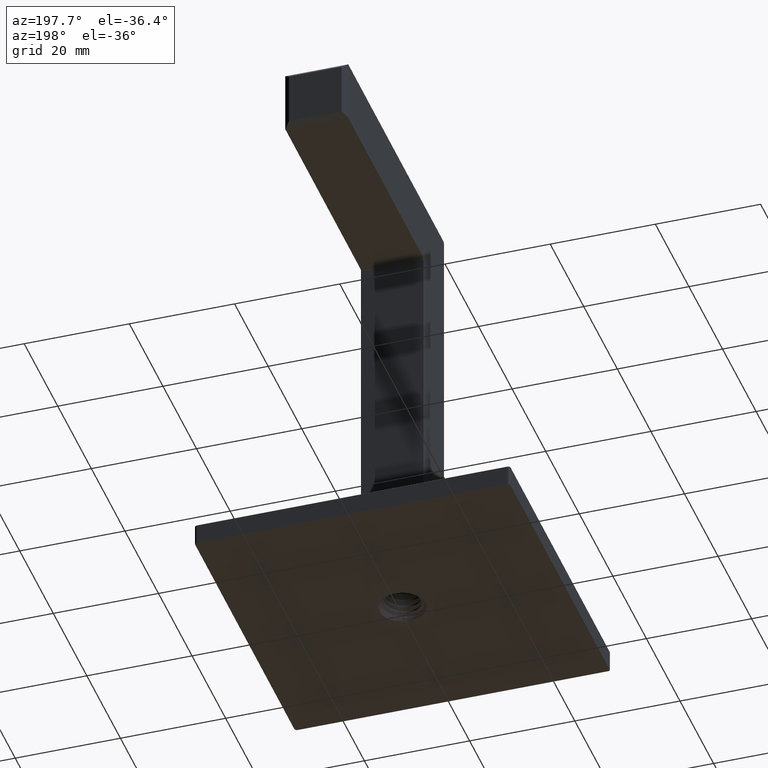
[diagram: clean part render]
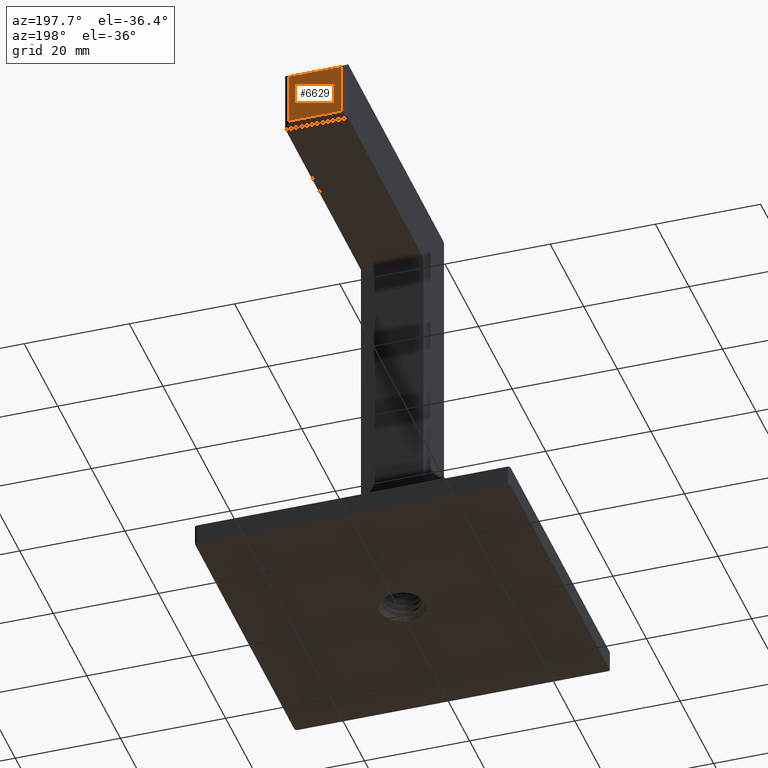
[diagram: same view with one face highlighted and labeled with its STEP entity id]
A machine part, auxiliary view. The second image highlights one B-rep face of the part: STEP entity #6629.
In plain terms, the highlighted planar face has unit normal (-0, -1, 0).
Its self-contained STEP definition (entity closure, byte-faithful):
#348 = LINE ( 'NONE', #8621, #7057 ) ;
#823 = CARTESIAN_POINT ( 'NONE',  ( -5.000000000000000888, 51.99999999999997158, 79.00000000000000000 ) ) ;
#877 = DIRECTION ( 'NONE',  ( -1.000000000000000000, 0.000000000000000000, -0.000000000000000000 ) ) ;
#891 = CARTESIAN_POINT ( 'NONE',  ( 4.999999999999997335, 51.99999999999997158, 84.00000000000000000 ) ) ;
#1688 = DIRECTION ( 'NONE',  ( -0.000000000000000000, -1.000000000000000000, 1.608122649676636601E-16 ) ) ;
#1719 = CARTESIAN_POINT ( 'NONE',  ( 0.000000000000000000, 51.99999999999997158, 79.00000000000000000 ) ) ;
#1918 = VECTOR ( 'NONE', #10046, 1000.000000000000000 ) ;
#2041 = VERTEX_POINT ( 'NONE', #7104 ) ;
#2664 = FACE_OUTER_BOUND ( 'NONE', #5746, .T. ) ;
#2792 = ORIENTED_EDGE ( 'NONE', *, *, #7024, .T. ) ;
#3313 = VECTOR ( 'NONE', #9861, 1000.000000000000000 ) ;
#3721 = VECTOR ( 'NONE', #6420, 1000.000000000000000 ) ;
#4338 = CARTESIAN_POINT ( 'NONE',  ( -5.000000000000000000, 51.99999999999997158, 74.00000000000001421 ) ) ;
#4815 = PLANE ( 'NONE',  #5639 ) ;
#4892 = ORIENTED_EDGE ( 'NONE', *, *, #5914, .T. ) ;
#5025 = EDGE_CURVE ( 'NONE', #5221, #6402, #7252, .T. ) ;
#5221 = VERTEX_POINT ( 'NONE', #891 ) ;
#5578 = DIRECTION ( 'NONE',  ( 1.000000000000000000, 0.000000000000000000, 0.000000000000000000 ) ) ;
#5639 = AXIS2_PLACEMENT_3D ( 'NONE', #1719, #1688, #877 ) ;
#5746 = EDGE_LOOP ( 'NONE', ( #6552, #2792, #6648, #4892 ) ) ;
#5849 = EDGE_CURVE ( 'NONE', #8022, #2041, #6066, .T. ) ;
#5914 = EDGE_CURVE ( 'NONE', #2041, #5221, #348, .T. ) ;
#5942 = CARTESIAN_POINT ( 'NONE',  ( 4.999999999999998224, 51.99999999999997158, 79.00000000000000000 ) ) ;
#6066 = LINE ( 'NONE', #823, #1918 ) ;
#6293 = CARTESIAN_POINT ( 'NONE',  ( 0.000000000000000000, 51.99999999999997158, 74.00000000000001421 ) ) ;
#6402 = VERTEX_POINT ( 'NONE', #10006 ) ;
#6420 = DIRECTION ( 'NONE',  ( -1.000000000000000000, 0.000000000000000000, 0.000000000000000000 ) ) ;
#6552 = ORIENTED_EDGE ( 'NONE', *, *, #5025, .T. ) ;
#6629 = ADVANCED_FACE ( 'NONE', ( #2664 ), #4815, .F. ) ;
#6648 = ORIENTED_EDGE ( 'NONE', *, *, #5849, .T. ) ;
#7024 = EDGE_CURVE ( 'NONE', #6402, #8022, #7602, .T. ) ;
#7057 = VECTOR ( 'NONE', #5578, 1000.000000000000000 ) ;
#7104 = CARTESIAN_POINT ( 'NONE',  ( -5.000000000000001776, 51.99999999999997158, 84.00000000000000000 ) ) ;
#7252 = LINE ( 'NONE', #5942, #3313 ) ;
#7602 = LINE ( 'NONE', #6293, #3721 ) ;
#8022 = VERTEX_POINT ( 'NONE', #4338 ) ;
#8621 = CARTESIAN_POINT ( 'NONE',  ( 0.000000000000000000, 51.99999999999997158, 84.00000000000000000 ) ) ;
#9861 = DIRECTION ( 'NONE',  ( 1.445602896647339163E-16, -1.608122649676636601E-16, -1.000000000000000000 ) ) ;
#10006 = CARTESIAN_POINT ( 'NONE',  ( 4.999999999999999112, 51.99999999999997158, 74.00000000000001421 ) ) ;
#10046 = DIRECTION ( 'NONE',  ( -1.445602896647339163E-16, 1.608122649676636601E-16, 1.000000000000000000 ) ) ;